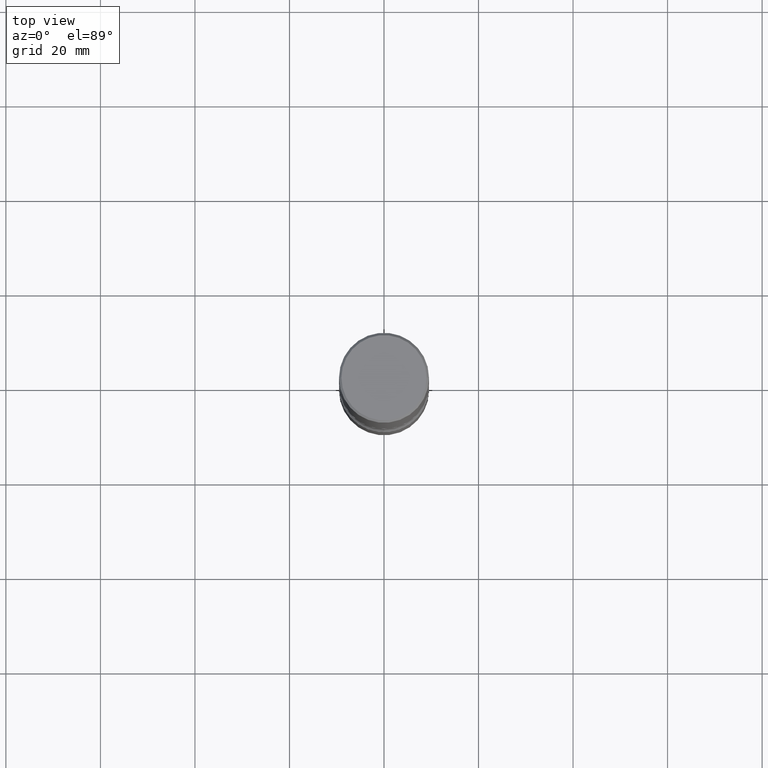
[diagram: clean part render]
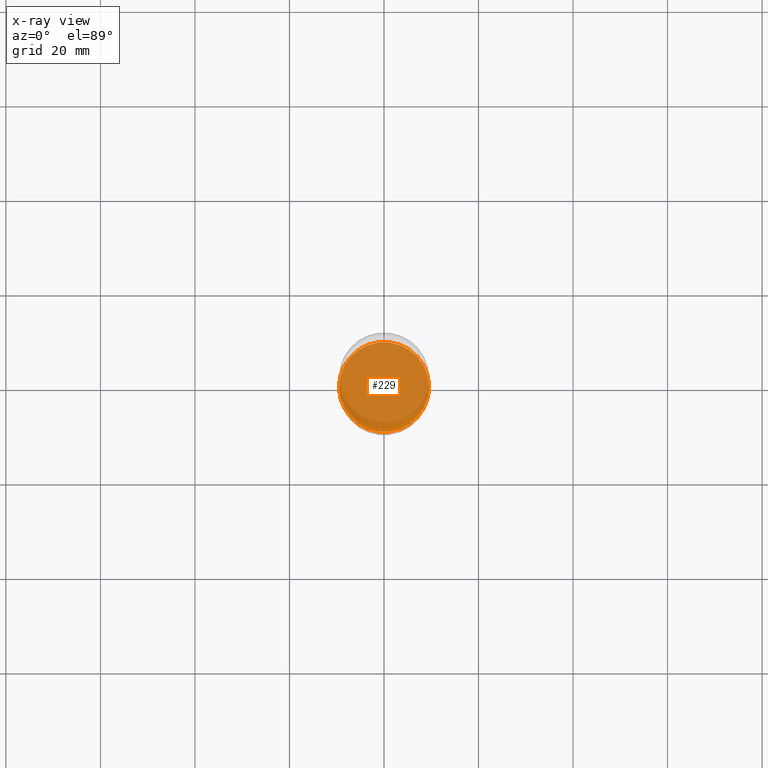
[diagram: x-ray — body ghosted, one internal face saturated and labeled with its STEP entity id]
A machine part, top view, then the same camera in x-ray: the body is ghosted and one INTERNAL B-rep face — a face not visible from any outside direction — is saturated and labeled: STEP entity #229.
In plain terms, the highlighted planar face has unit normal (0, -0, -1).
Its self-contained STEP definition (entity closure, byte-faithful):
#14 = CARTESIAN_POINT ( 'NONE',  ( 0.3750000000000003886, -1.833027702892650691E-14, -4.499999999999999112 ) ) ;
#22 = VERTEX_POINT ( 'NONE', #300 ) ;
#53 = EDGE_CURVE ( 'NONE', #332, #22, #197, .T. ) ;
#96 = FACE_OUTER_BOUND ( 'NONE', #201, .T. ) ;
#98 = DIRECTION ( 'NONE',  ( -2.445468806185136597E-29, 3.491481338843145583E-15, 1.000000000000000000 ) ) ;
#126 = DIRECTION ( 'NONE',  ( -2.445468806185136597E-29, 3.491481338843145583E-15, 1.000000000000000000 ) ) ;
#175 = CARTESIAN_POINT ( 'NONE',  ( 1.100460962783311244E-28, -1.571166602479415374E-14, -4.499999999999999112 ) ) ;
#190 = CIRCLE ( 'NONE', #484, 0.3750000000000003886 ) ;
#191 = EDGE_CURVE ( 'NONE', #22, #332, #190, .T. ) ;
#197 = CIRCLE ( 'NONE', #244, 0.3750000000000003886 ) ;
#201 = EDGE_LOOP ( 'NONE', ( #317, #488 ) ) ;
#221 = CARTESIAN_POINT ( 'NONE',  ( 1.100460962783311244E-28, -1.571166602479415374E-14, -4.499999999999999112 ) ) ;
#229 = ADVANCED_FACE ( 'NONE', ( #96 ), #443, .F. ) ;
#244 = AXIS2_PLACEMENT_3D ( 'NONE', #260, #126, #292 ) ;
#248 = AXIS2_PLACEMENT_3D ( 'NONE', #221, #393, #481 ) ;
#260 = CARTESIAN_POINT ( 'NONE',  ( 1.100460962783311244E-28, -1.571166602479415374E-14, -4.499999999999999112 ) ) ;
#268 = DIRECTION ( 'NONE',  ( 1.000000000000000000, -6.982962677686265922E-15, 0.000000000000000000 ) ) ;
#292 = DIRECTION ( 'NONE',  ( 1.000000000000000000, -6.982962677686265922E-15, 0.000000000000000000 ) ) ;
#300 = CARTESIAN_POINT ( 'NONE',  ( -0.3750000000000003886, -1.564828436313191776E-14, -4.499999999999999112 ) ) ;
#317 = ORIENTED_EDGE ( 'NONE', *, *, #53, .T. ) ;
#332 = VERTEX_POINT ( 'NONE', #14 ) ;
#393 = DIRECTION ( 'NONE',  ( 2.438088387897960049E-29, -3.491481338843145188E-15, -1.000000000000000000 ) ) ;
#443 = PLANE ( 'NONE',  #248 ) ;
#481 = DIRECTION ( 'NONE',  ( -1.000000000000000000, 6.982962677686265922E-15, -4.876176775795935793E-29 ) ) ;
#484 = AXIS2_PLACEMENT_3D ( 'NONE', #175, #98, #268 ) ;
#488 = ORIENTED_EDGE ( 'NONE', *, *, #191, .T. ) ;